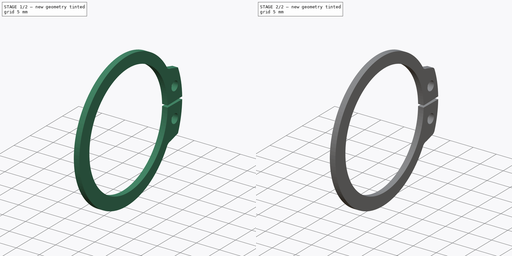
[diagram: build sequence overview — one tinted view per stage of 2, left to right]
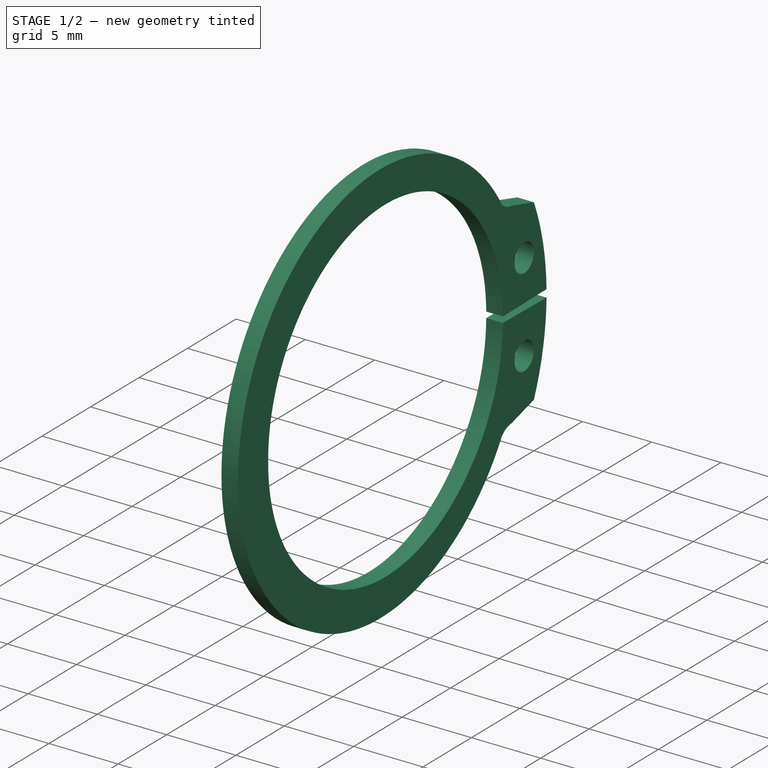
[diagram: stage 1 of 2 — iso view after this stage's code; geometry added in this stage tinted green]
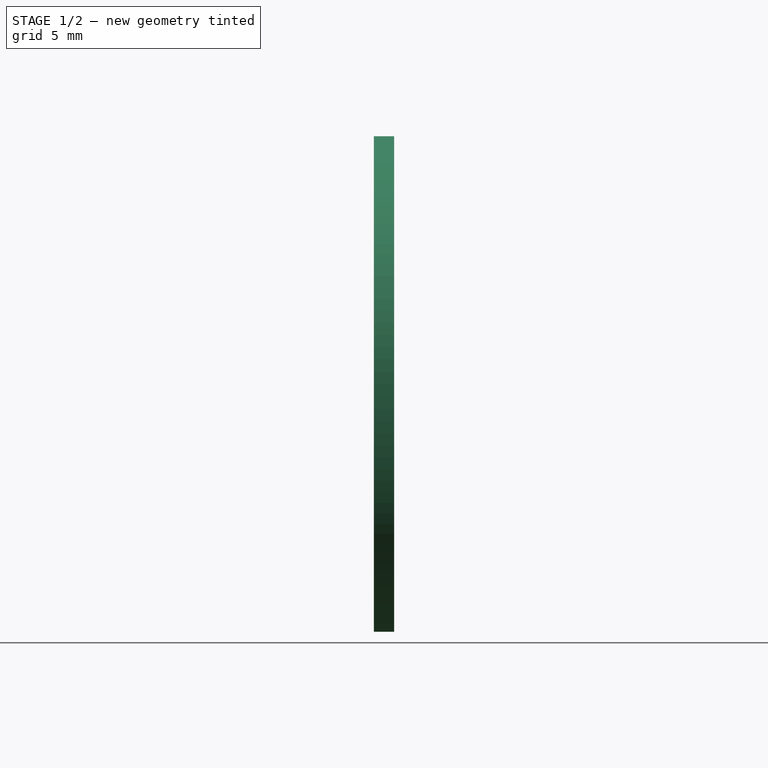
[diagram: stage 1 of 2 — front view after this stage's code; geometry added in this stage tinted green]
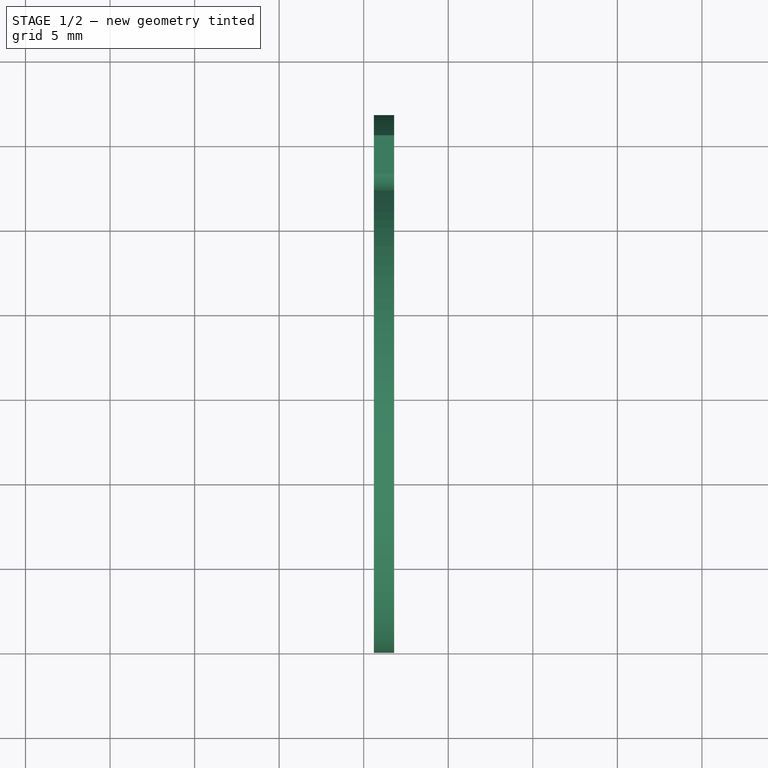
[diagram: stage 1 of 2 — top view after this stage's code; geometry added in this stage tinted green]
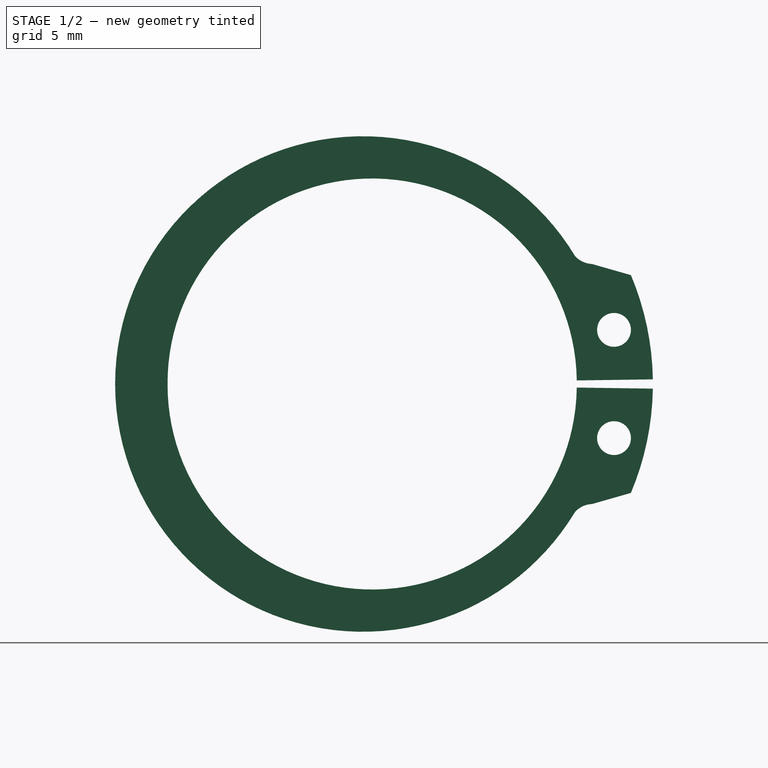
[diagram: stage 1 of 2 — right view after this stage's code; geometry added in this stage tinted green]
FCSTD DOCUMENT  (FreeCAD 0.15R4671 (Git))
Label: DIN471_CLASS_A_M26RetainingRings
License: CreativeCommons Attribution-ShareAlike
LicenseURL: http://creativecommons.org/licenses/by-sa/4.0/
objects: Sketcher::SketchObject×1, PartDesign::Pad×1, PartDesign::Mirrored×1, PartDesign::Fillet×1
note: 5 computed .brp shape members not serialized (recipe doc carries the construction recipe); baked Part::Feature solids carry a one-line shape summary decoded from their .brp

FEATURE [Sketcher::SketchObject] Sketch
  Placement = pos=(0.6,0,0) rot=(0.57735,0.57735,0.57735;2.0944rad)
  sketch-geometry (8):
    g0: Circle CenterX=14.3 CenterY=3.2 CenterZ=0 NormalX=0 NormalY=0 NormalZ=1 Radius=1
    g1: ArcOfCircle CenterX=-0.00126244 CenterY=0.0529215 CenterZ=0 NormalX=0 NormalY=0 NormalZ=1 Radius=12.1 StartAngle=0.0129881 EndAngle=3.14597
    g2: ArcOfCircle CenterX=0 CenterY=0 CenterZ=0 NormalX=0 NormalY=0 NormalZ=1 Radius=16.6 StartAngle=0.0165852 EndAngle=0.39839
    g3: LineSegment StartX=12.0977 StartY=0.210073 StartZ=0 EndX=16.5977 EndY=0.275301 EndZ=0
    g4: ArcOfCircle CenterX=-0.55 CenterY=0 CenterZ=0 NormalX=0 NormalY=0 NormalZ=1 Radius=14.6511 StartAngle=0.542175 EndAngle=3.14159
    g5: LineSegment StartX=-15.2011 StartY=0 StartZ=0 EndX=-12.1011 EndY=0 EndZ=0
    g6: LineSegment StartX=13 StartY=7.0972 StartZ=0 EndX=15.3 EndY=6.43972 EndZ=0
    g7: ArcOfCircle CenterX=13.0633 CenterY=8.54582 CenterZ=0 NormalX=0 NormalY=0 NormalZ=1 Radius=1.45 StartAngle=3.88918 EndAngle=4.6687
  constraints (27):
    c: Radius(g0) = 1
    c: DistanceY(g-1,g0) = 3.2
    c: DistanceX(g-1,g0) = 14.3
    c: PointOnObject(g1,g-1)
    c: Radius(g1) = 12.1
    c: Coincident(g2,g-1)
    c: Radius(g2) = 16.6
    c: Coincident(g3,g1)
    c: Coincident(g3,g2)
    c: DistanceY(g-1,g2) = 0.275301
    c: DistanceY(g-1,g1) = 0.210073
    c: DistanceX(g3) = 4.5
    c: PointOnObject(g4,g-1)
    c: PointOnObject(g4,g-1)
    c: Coincident(g5,g4)
    c: Coincident(g5,g1)
    c: DistanceX(g5) = 3.1
    c: Coincident(g6,g2)
    c: Coincident(g7,g4)
    c: Coincident(g7,g6)
    c: Radius(g7) = 1.45
    c: DistanceX(g6) = 2.3
    c: DistanceX(g-1,g4) = 12
    c: DistanceX(g-1,g6) = 13
    c: DistanceY(g-1,g4) = 7.56
    c: DistanceY(g-1,g6) = 7.0972
    c: DistanceX(g-1,g4) = -0.55
FEATURE [PartDesign::Pad] Pad
  Length = 1.2
  Length2 = 100
  Placement = pos=(0.6,0,0) rot=(0.57735,0.57735,0.57735;2.0944rad)
  Sketch = -> Sketch
  Type = 0
FEATURE [PartDesign::Mirrored] Mirrored
  MirrorPlane = -> Sketch [H_Axis]
  Originals = -> [Pad]
  Placement = pos=(0.6,0,0) rot=(0.57735,0.57735,0.57735;2.0944rad)
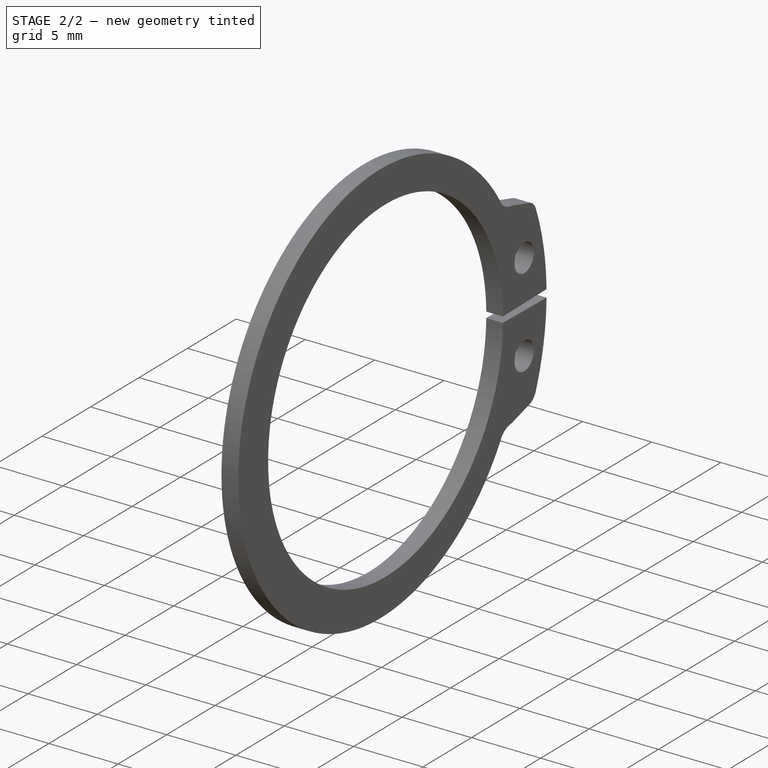
[diagram: stage 2 of 2 — iso view after this stage's code; geometry added in this stage tinted green]
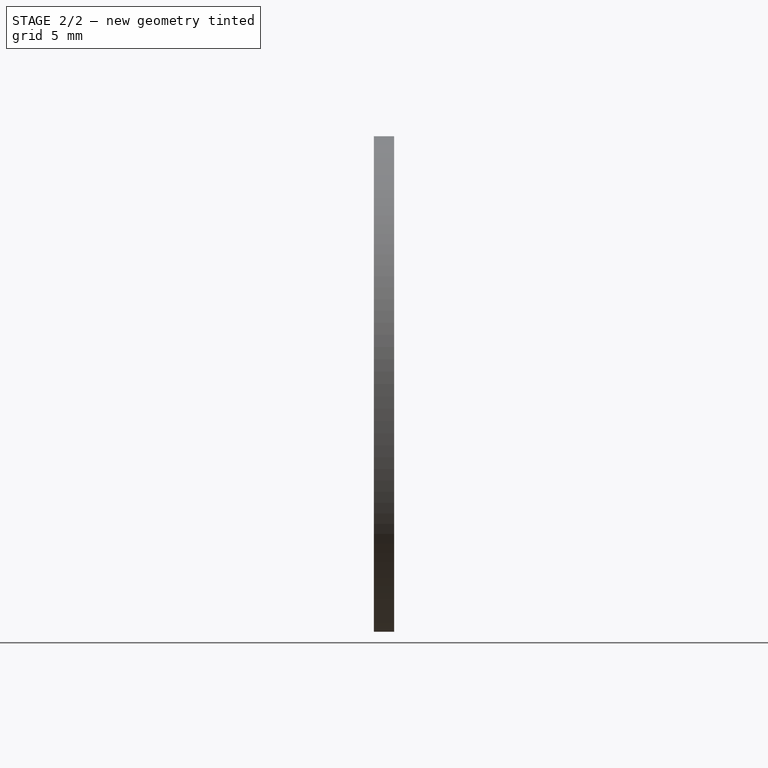
[diagram: stage 2 of 2 — front view after this stage's code; geometry added in this stage tinted green]
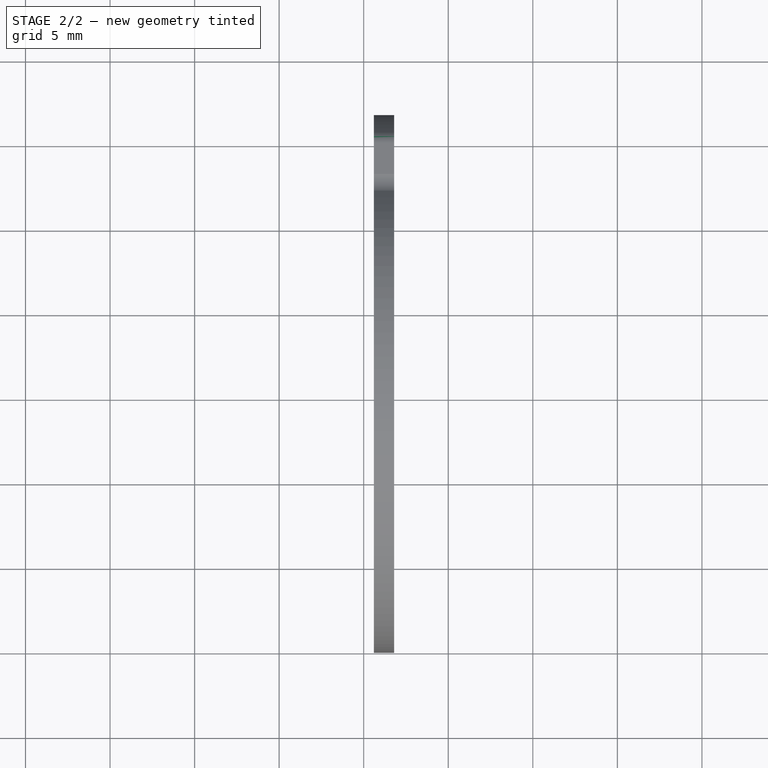
[diagram: stage 2 of 2 — top view after this stage's code; geometry added in this stage tinted green]
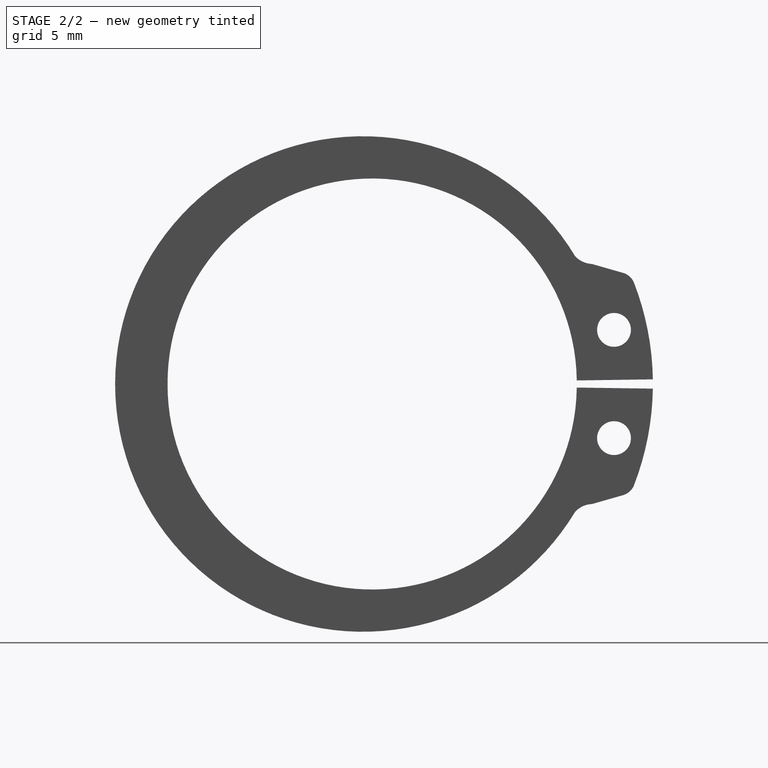
[diagram: stage 2 of 2 — right view after this stage's code; geometry added in this stage tinted green]
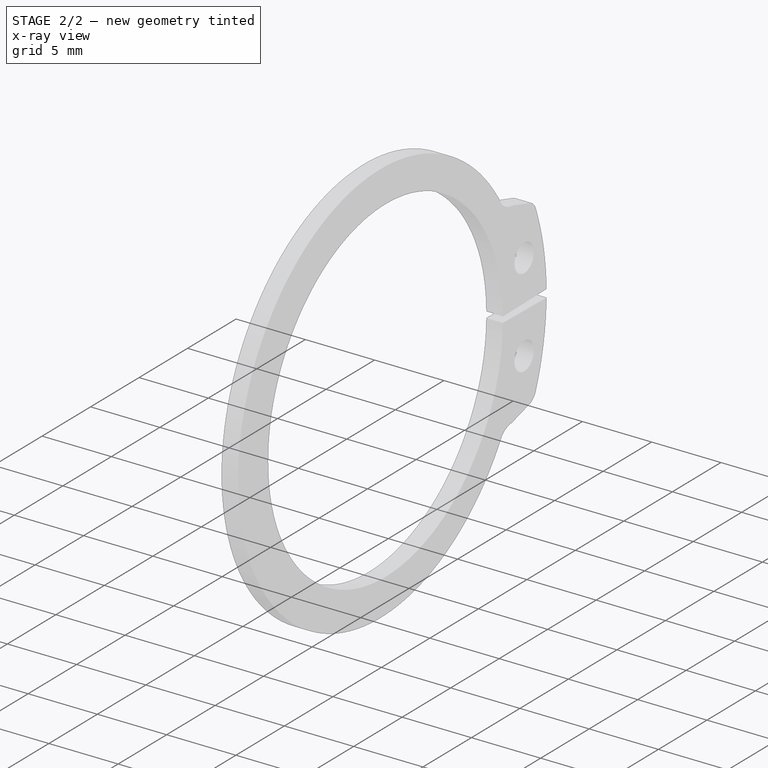
[diagram: stage 2 of 2 — x-ray composite at the iso view; earlier geometry ghosted, this stage's added geometry solid]
FEATURE [PartDesign::Fillet] Fillet
  Base = -> Mirrored [Edge8,Edge23]
  Placement = pos=(0.6,0,0) rot=(0.57735,0.57735,0.57735;2.0944rad)
  Radius = 1
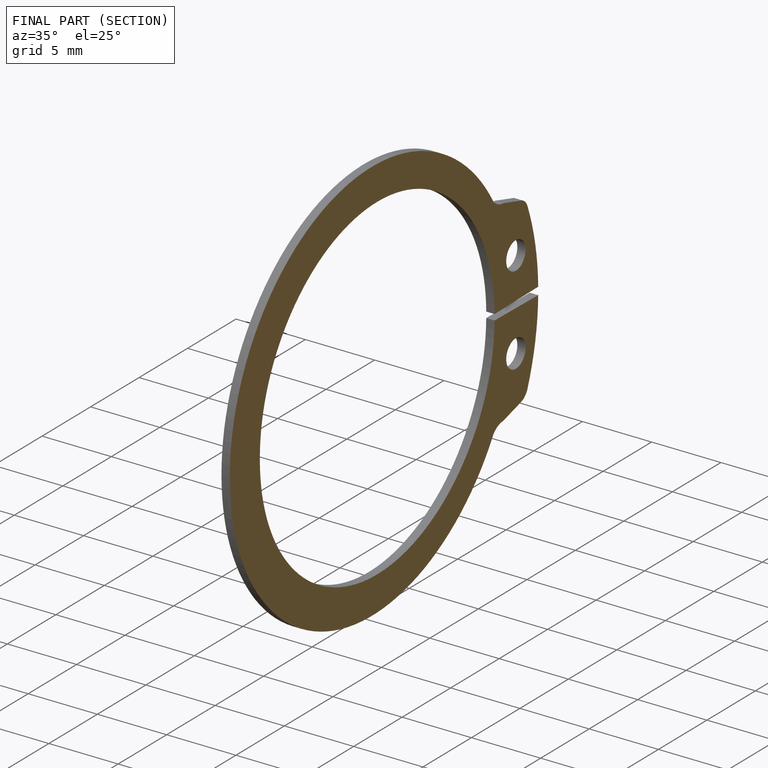
[diagram: finished part — half-section view (interior)]
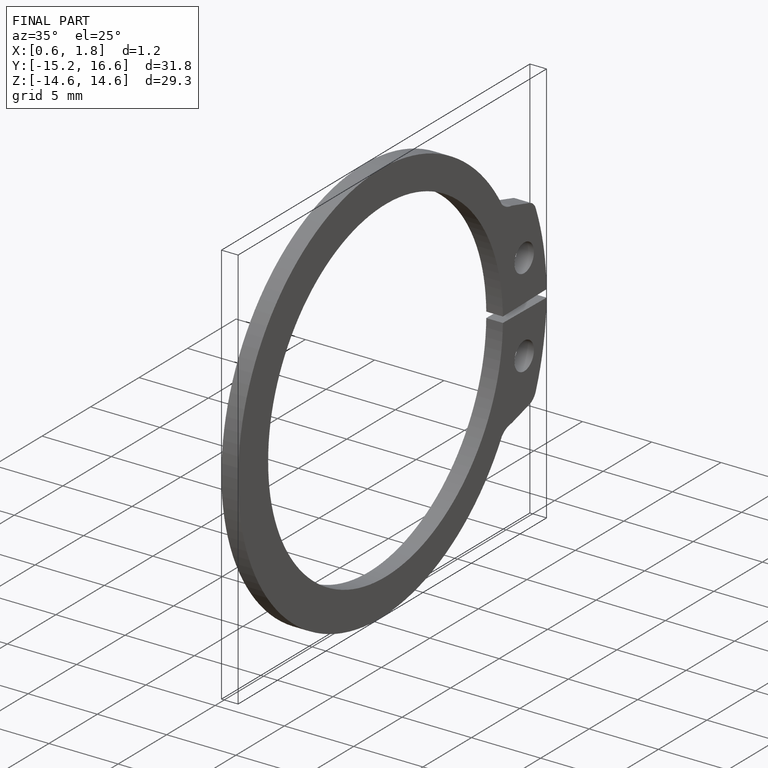
[diagram: finished part — iso view with bounding-box wireframe]
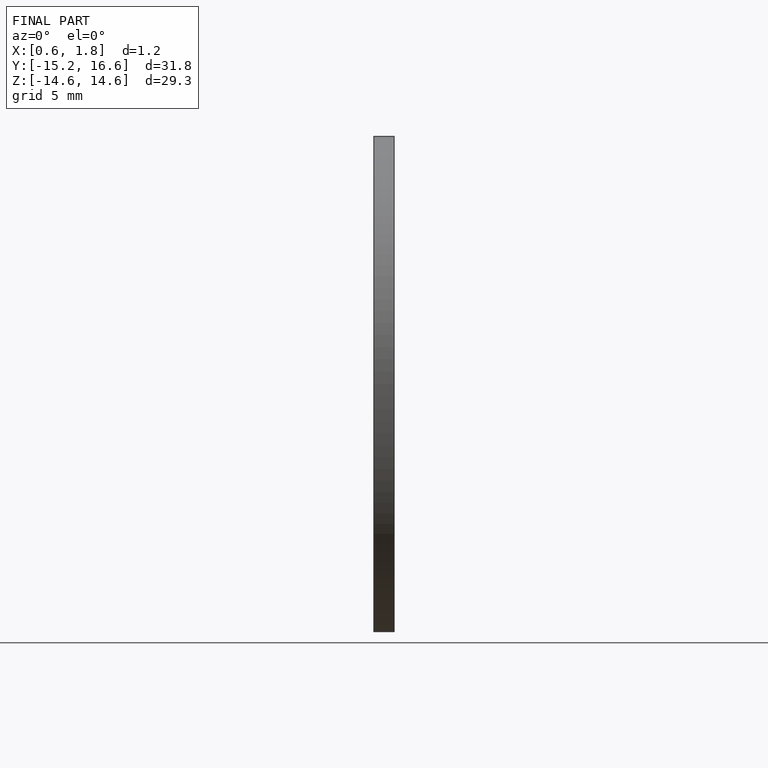
[diagram: finished part — front view with bounding-box wireframe]
